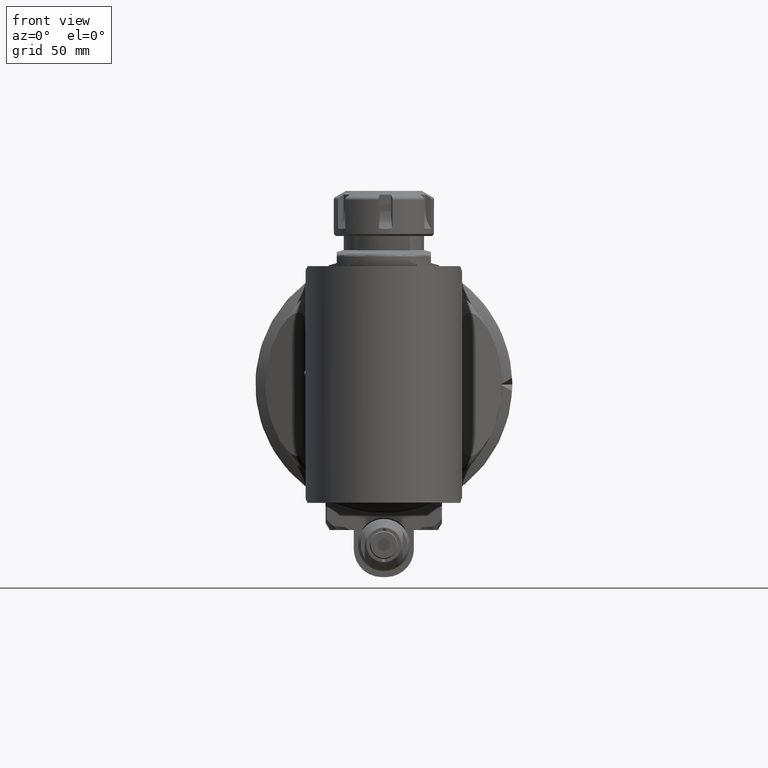
[diagram: clean part render]
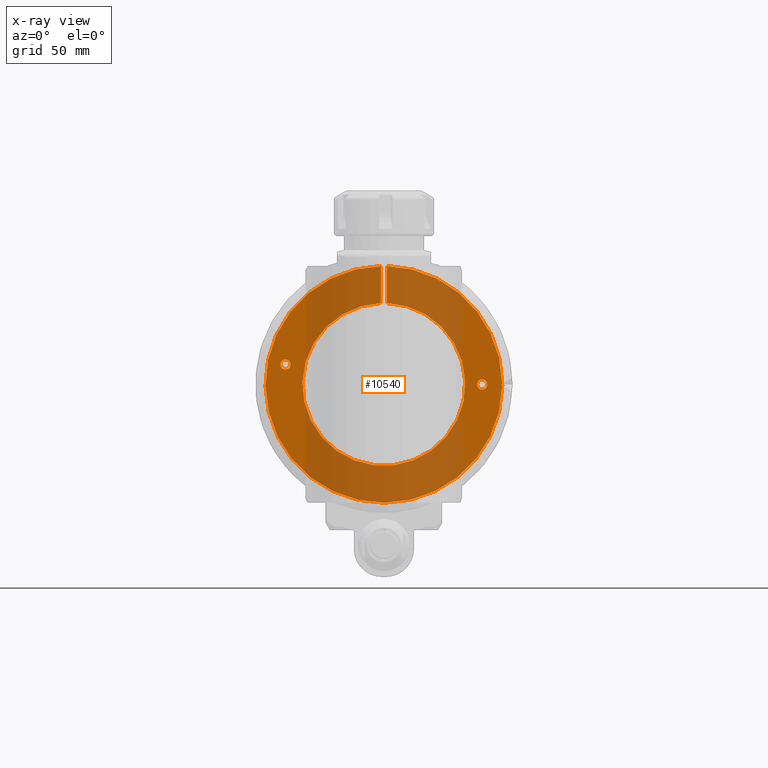
[diagram: x-ray — body ghosted, one internal face saturated and labeled with its STEP entity id]
A machine part, front view, then the same camera in x-ray: the body is ghosted and one INTERNAL B-rep face — a face not visible from any outside direction — is saturated and labeled: STEP entity #10540.
In plain terms, the highlighted planar face has unit normal (0, -1, 0).
Its self-contained STEP definition (entity closure, byte-faithful):
#749=LINE('',#18466,#1423);
#750=LINE('',#18507,#1424);
#752=LINE('',#18523,#1426);
#753=LINE('',#18550,#1427);
#1423=VECTOR('',#13304,18.43131315492);
#1424=VECTOR('',#13315,10.);
#1426=VECTOR('',#13319,10.);
#1427=VECTOR('',#13330,18.43131315492);
#2073=FACE_BOUND('',#3273,.T.);
#2074=FACE_BOUND('',#3274,.T.);
#2207=PLANE('',#11476);
#2602=FACE_OUTER_BOUND('',#3272,.T.);
#3272=EDGE_LOOP('',(#8069,#8070,#8071,#8072,#8073,#8074,#8075));
#3273=EDGE_LOOP('',(#8076));
#3274=EDGE_LOOP('',(#8077));
#3975=CIRCLE('',#11433,59.);
#3992=CIRCLE('',#11475,40.57735026919);
#3993=CIRCLE('',#11477,59.);
#3994=CIRCLE('',#11478,2.5);
#3995=CIRCLE('',#11479,2.5);
#4691=VERTEX_POINT('',#18463);
#4692=VERTEX_POINT('',#18465);
#4697=VERTEX_POINT('',#18502);
#4698=VERTEX_POINT('',#18506);
#4699=VERTEX_POINT('',#18510);
#4701=VERTEX_POINT('',#18525);
#4703=VERTEX_POINT('',#18549);
#4727=VERTEX_POINT('',#18753);
#4728=VERTEX_POINT('',#18755);
#5910=EDGE_CURVE('',#4692,#4691,#749,.T.);
#5918=EDGE_CURVE('',#4698,#4697,#750,.T.);
#5922=EDGE_CURVE('',#4699,#4698,#752,.T.);
#5923=EDGE_CURVE('',#4701,#4699,#3975,.T.);
#5927=EDGE_CURVE('',#4703,#4701,#753,.T.);
#5968=EDGE_CURVE('',#4691,#4703,#3992,.T.);
#5969=EDGE_CURVE('',#4697,#4692,#3993,.T.);
#5970=EDGE_CURVE('',#4727,#4727,#3994,.T.);
#5971=EDGE_CURVE('',#4728,#4728,#3995,.T.);
#8069=ORIENTED_EDGE('',*,*,#5969,.T.);
#8070=ORIENTED_EDGE('',*,*,#5910,.T.);
#8071=ORIENTED_EDGE('',*,*,#5968,.T.);
#8072=ORIENTED_EDGE('',*,*,#5927,.T.);
#8073=ORIENTED_EDGE('',*,*,#5923,.T.);
#8074=ORIENTED_EDGE('',*,*,#5922,.T.);
#8075=ORIENTED_EDGE('',*,*,#5918,.T.);
#8076=ORIENTED_EDGE('',*,*,#5970,.T.);
#8077=ORIENTED_EDGE('',*,*,#5971,.T.);
#10540=ADVANCED_FACE('',(#2602,#2073,#2074),#2207,.T.);
#11433=AXIS2_PLACEMENT_3D('',#18526,#13322,#13323);
#11475=AXIS2_PLACEMENT_3D('',#18750,#13418,#13419);
#11476=AXIS2_PLACEMENT_3D('',#18751,#13420,#13421);
#11477=AXIS2_PLACEMENT_3D('',#18752,#13422,#13423);
#11478=AXIS2_PLACEMENT_3D('',#18754,#13424,#13425);
#11479=AXIS2_PLACEMENT_3D('',#18756,#13426,#13427);
#13304=DIRECTION('',(0.,0.,-1.));
#13315=DIRECTION('',(0.75592894601843,0.,0.654653670708006));
#13319=DIRECTION('',(-0.75592894601843,0.,0.654653670708006));
#13322=DIRECTION('center_axis',(0.,-1.,0.));
#13323=DIRECTION('ref_axis',(0.,0.,-1.));
#13330=DIRECTION('',(0.,0.,1.));
#13418=DIRECTION('center_axis',(0.,1.,0.));
#13419=DIRECTION('ref_axis',(0.,0.,-1.));
#13420=DIRECTION('center_axis',(0.,-1.,0.));
#13421=DIRECTION('ref_axis',(0.,0.,1.));
#13422=DIRECTION('center_axis',(0.,-1.,0.));
#13423=DIRECTION('ref_axis',(0.999973237557454,0.,0.00731602138204067));
#13424=DIRECTION('center_axis',(0.,1.,0.));
#13425=DIRECTION('ref_axis',(-1.,0.,0.));
#13426=DIRECTION('center_axis',(0.,1.,0.));
#13427=DIRECTION('ref_axis',(-1.,0.,0.));
#18463=CARTESIAN_POINT('',(1.499999846154,1.894780628694E-14,40.54961597019));
#18465=CARTESIAN_POINT('',(1.499999846154,0.,58.98092912511));
#18466=CARTESIAN_POINT('',(1.499999846154,0.,58.98092912511));
#18502=CARTESIAN_POINT('',(58.9984211035747,2.48269226475992E-8,0.431645372949116));
#18506=CARTESIAN_POINT('',(58.5,0.,-4.853054148696E-14));
#18507=CARTESIAN_POINT('',(63.8447075439727,0.,4.62865250887851));
#18510=CARTESIAN_POINT('',(58.9984211035661,2.48245060114878E-8,-0.431645372941069));
#18523=CARTESIAN_POINT('',(39.8692703756239,0.,16.134685145748));
#18525=CARTESIAN_POINT('',(-1.499999846154,0.,58.98092912511));
#18526=CARTESIAN_POINT('Origin',(0.,-2.13162820728E-14,0.));
#18549=CARTESIAN_POINT('',(-1.499999846154,7.105427357601E-14,40.54961597019));
#18550=CARTESIAN_POINT('',(-1.499999846154,1.894780628694E-14,40.54961597019));
#18750=CARTESIAN_POINT('Origin',(0.,7.105427357601E-14,0.));
#18751=CARTESIAN_POINT('Origin',(0.,0.,60.46860314096));
#18752=CARTESIAN_POINT('Origin',(0.,-2.13162820728E-14,0.));
#18753=CARTESIAN_POINT('',(51.5,0.,0.));
#18754=CARTESIAN_POINT('Origin',(49.,0.,0.));
#18755=CARTESIAN_POINT('',(-46.5,0.,10.));
#18756=CARTESIAN_POINT('Origin',(-49.,0.,10.));